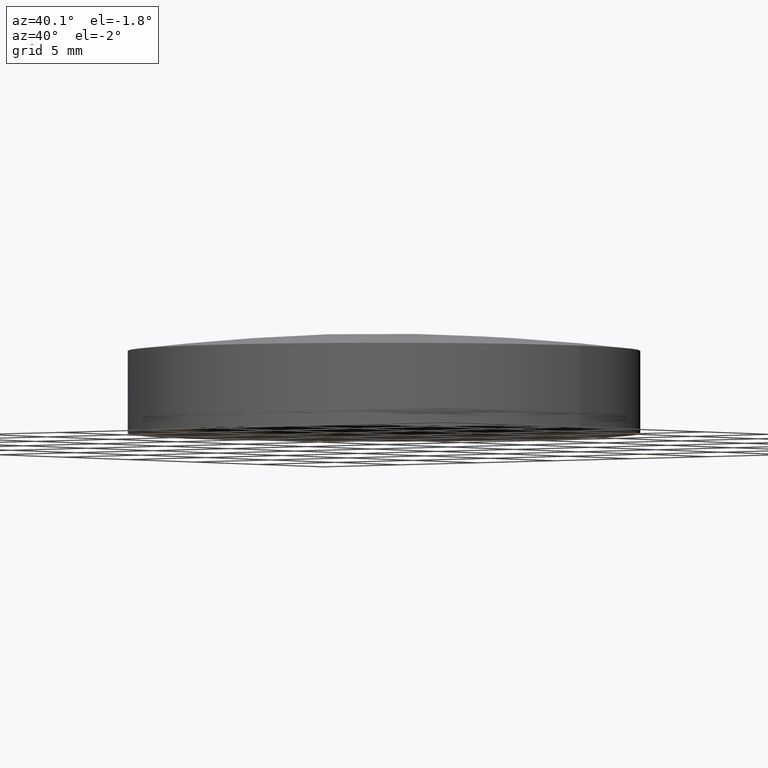
[diagram: clean part render]
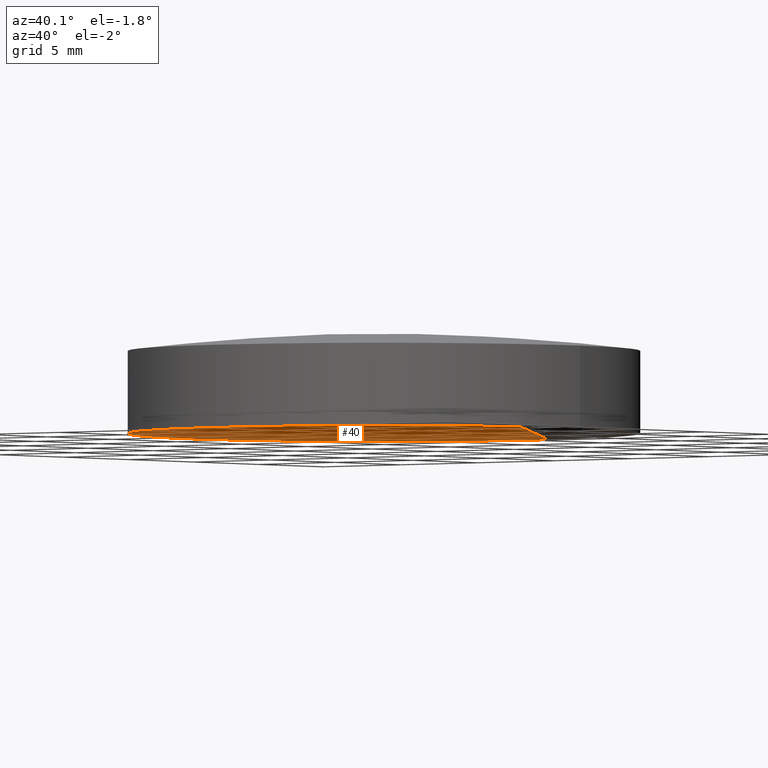
[diagram: same view with one face highlighted and labeled with its STEP entity id]
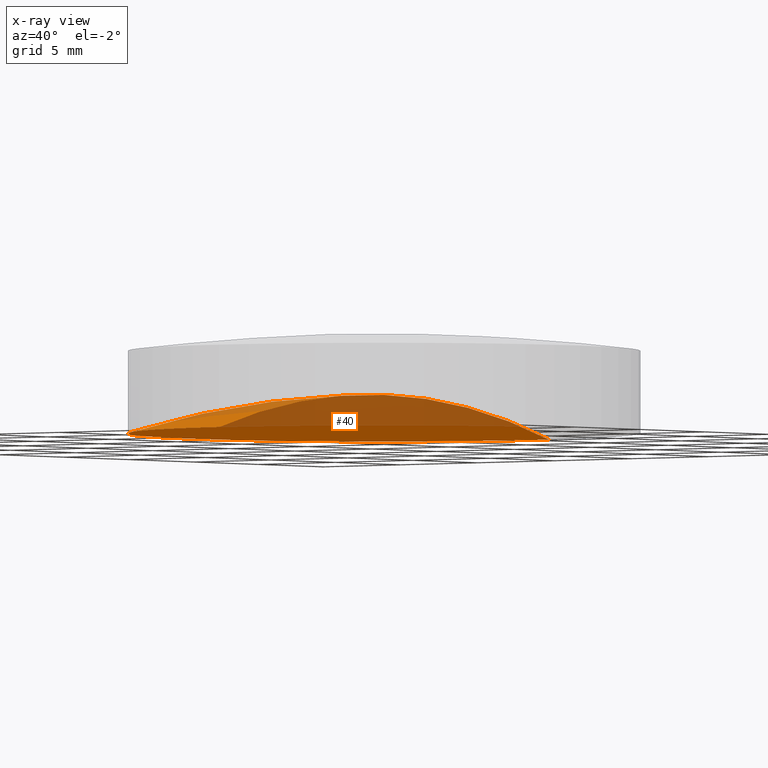
[diagram: x-ray of the same camera — body ghosted, the highlighted face saturated]
A machine part, auxiliary view. The second image highlights one B-rep face of the part: STEP entity #40.
The next image is the same camera in x-ray: the body ghosted, the highlighted face saturated — about 52% of this face is hidden behind the body in this view.
In plain terms, the highlighted spherical surface has radius 43.14 mm.
Its self-contained STEP definition (entity closure, byte-faithful):
#4 = EDGE_LOOP ( 'NONE', ( #5, #59, #44, #35 ) ) ;
#5 = ORIENTED_EDGE ( 'NONE', *, *, #11, .F. ) ;
#11 = EDGE_CURVE ( 'NONE', #13, #12, #127, .T. ) ;
#12 = VERTEX_POINT ( 'NONE', #150 ) ;
#13 = VERTEX_POINT ( 'NONE', #149 ) ;
#16 = EDGE_CURVE ( 'NONE', #17, #12, #189, .T. ) ;
#17 = VERTEX_POINT ( 'NONE', #190 ) ;
#19 = EDGE_CURVE ( 'NONE', #17, #25, #123, .T. ) ;
#25 = VERTEX_POINT ( 'NONE', #104 ) ;
#35 = ORIENTED_EDGE ( 'NONE', *, *, #16, .T. ) ;
#36 = EDGE_CURVE ( 'NONE', #25, #13, #183, .T. ) ;
#40 = ADVANCED_FACE ( 'NONE', ( #178 ), #233, .F. ) ;
#44 = ORIENTED_EDGE ( 'NONE', *, *, #19, .F. ) ;
#59 = ORIENTED_EDGE ( 'NONE', *, *, #36, .F. ) ;
#104 = CARTESIAN_POINT ( 'NONE',  ( -12.70000000000000600, 1.555250069354419900E-015, -2.455868924448944200 ) ) ;
#119 = DIRECTION ( 'NONE',  ( 1.000000000000000000, 0.0000000000000000000, 0.0000000000000000000 ) ) ;
#120 = DIRECTION ( 'NONE',  ( -0.0000000000000000000, -0.0000000000000000000, 1.000000000000000000 ) ) ;
#121 = CARTESIAN_POINT ( 'NONE',  ( 0.0000000000000000000, 0.0000000000000000000, -2.455868924448944200 ) ) ;
#122 = AXIS2_PLACEMENT_3D ( 'NONE', #121, #120, #119 ) ;
#123 = CIRCLE ( 'NONE', #122, 12.70000000000000500 ) ;
#126 = AXIS2_PLACEMENT_3D ( 'NONE', #153, #152, #151 ) ;
#127 = CIRCLE ( 'NONE', #126, 43.14000000000000100 ) ;
#149 = CARTESIAN_POINT ( 'NONE',  ( -1.555250069354420500E-015, -12.70000000000001000, -2.455868924448946000 ) ) ;
#150 = CARTESIAN_POINT ( 'NONE',  ( 0.0000000000000000000, 2.641475905194867600E-015, -0.5441310755510686500 ) ) ;
#151 = DIRECTION ( 'NONE',  ( -1.224606353822377300E-016, -1.000000000000000000, 0.0000000000000000000 ) ) ;
#152 = DIRECTION ( 'NONE',  ( -1.000000000000000000, 1.224606353822377300E-016, 0.0000000000000000000 ) ) ;
#153 = CARTESIAN_POINT ( 'NONE',  ( 0.0000000000000000000, 0.0000000000000000000, -43.68413107555106500 ) ) ;
#178 = FACE_OUTER_BOUND ( 'NONE', #4, .T. ) ;
#179 = DIRECTION ( 'NONE',  ( 1.000000000000000000, 0.0000000000000000000, 0.0000000000000000000 ) ) ;
#180 = DIRECTION ( 'NONE',  ( -0.0000000000000000000, -0.0000000000000000000, 1.000000000000000000 ) ) ;
#181 = CARTESIAN_POINT ( 'NONE',  ( 0.0000000000000000000, 0.0000000000000000000, -2.455868924448944200 ) ) ;
#182 = AXIS2_PLACEMENT_3D ( 'NONE', #181, #180, #179 ) ;
#183 = CIRCLE ( 'NONE', #182, 12.70000000000000500 ) ;
#185 = DIRECTION ( 'NONE',  ( 0.0000000000000000000, 0.0000000000000000000, -1.000000000000000000 ) ) ;
#186 = DIRECTION ( 'NONE',  ( 1.000000000000000000, -0.0000000000000000000, 0.0000000000000000000 ) ) ;
#187 = CARTESIAN_POINT ( 'NONE',  ( 0.0000000000000000000, 0.0000000000000000000, -43.68413107555106500 ) ) ;
#188 = AXIS2_PLACEMENT_3D ( 'NONE', #187, #186, #185 ) ;
#189 = CIRCLE ( 'NONE', #188, 43.14000000000000100 ) ;
#190 = CARTESIAN_POINT ( 'NONE',  ( 0.0000000000000000000, 12.70000000000001000, -2.455868924448946000 ) ) ;
#208 = CARTESIAN_POINT ( 'NONE',  ( 0.0000000000000000000, 0.0000000000000000000, -43.68413107555106500 ) ) ;
#233 = SPHERICAL_SURFACE ( 'NONE', #275, 43.14000000000000100 ) ;
#259 = DIRECTION ( 'NONE',  ( 0.0000000000000000000, 1.000000000000000000, 0.0000000000000000000 ) ) ;
#269 = DIRECTION ( 'NONE',  ( -1.000000000000000000, 0.0000000000000000000, 0.0000000000000000000 ) ) ;
#275 = AXIS2_PLACEMENT_3D ( 'NONE', #208, #269, #259 ) ;